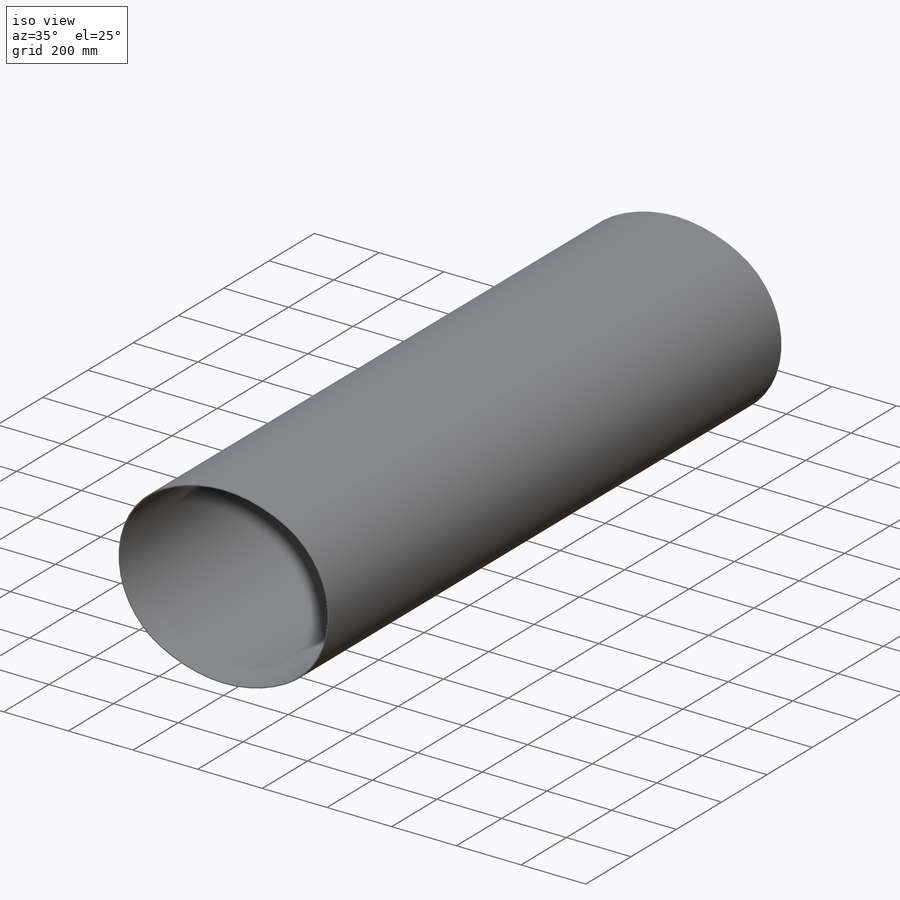
[diagram: iso view]
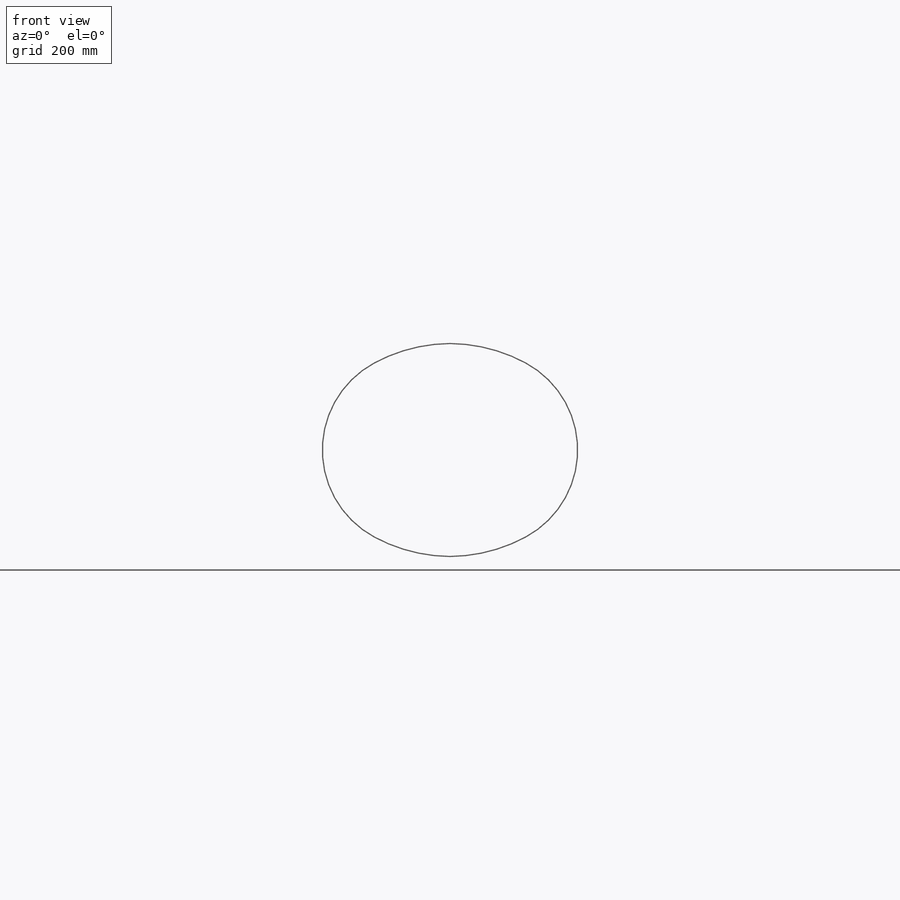
[diagram: front view]
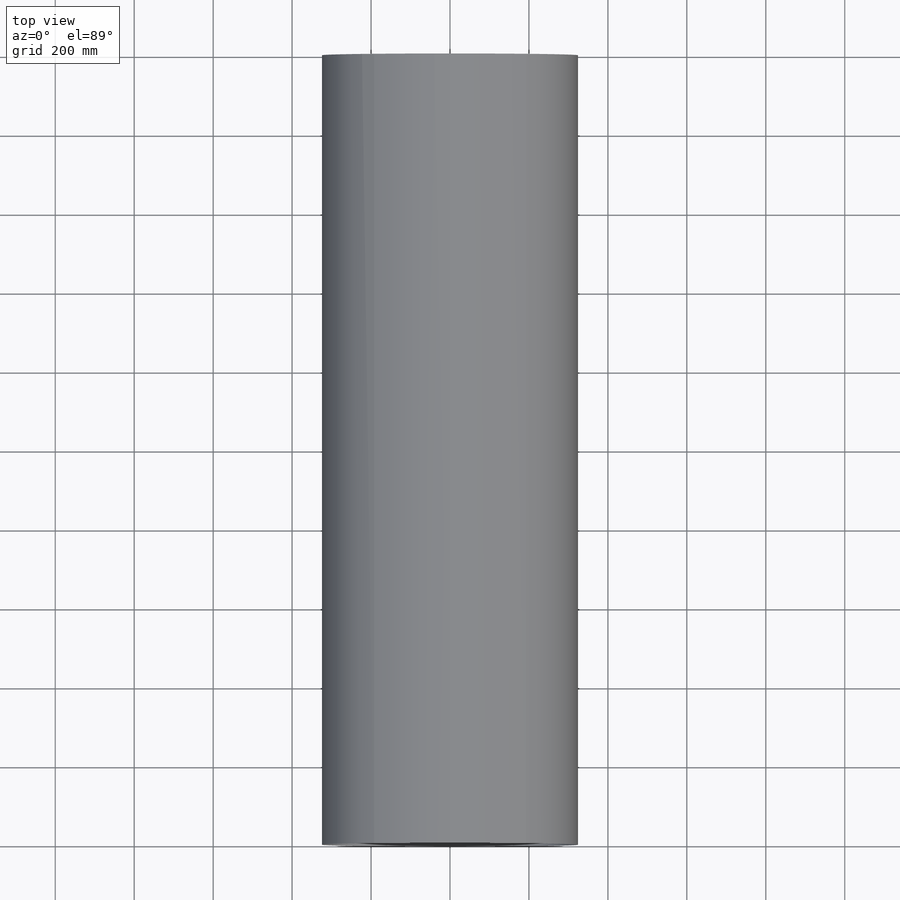
[diagram: top view]
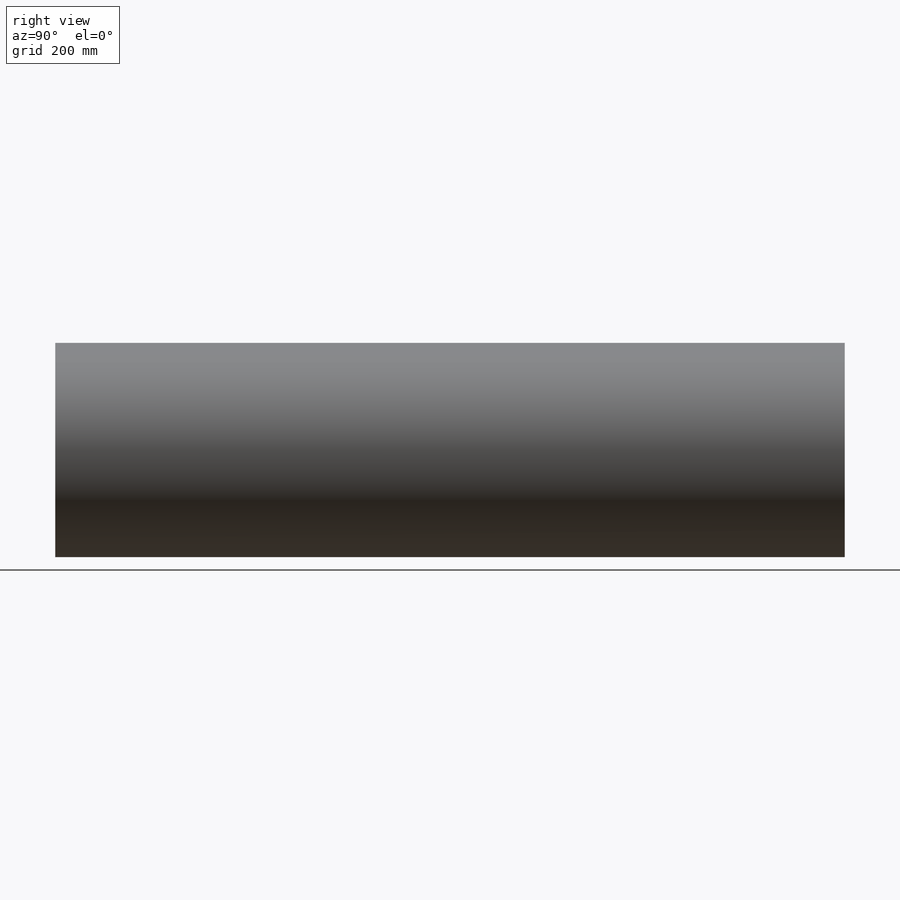
[diagram: right view]
SOLIDWORKS PART (.sldprt)
format: sldprt  version: not decoded by parser v0  size: 433,152 bytes
history: native  units: mm
features: sheet_metal_op x94, material x7, cut_extrude x2, plane x1, sketch x1 + 18 further entries (+16 scaffold rows collapsed; 2 parser-record rows omitted)
feature tree (141):
  scaffold x16  (default folders/planes/origin — collapsed)
  material  "1.4301"
  plane  "Vorderansicht"
  "Draufsicht"
  "Seitenansicht"
  "Y-Achse"
  "Z-Achse"
  sketch  "Skizze1"  dims[c1.D1=0.05mm c2.D1=3.0mm c2.D2=0.0 c2.D3=0.0mm c2.D6=500.0mm]
  sheet_metal_op  "Basis-Blech1"
  sheet_metal_op  "DPSAppName"
  sheet_metal_op  "DPSAppVersion"
  sheet_metal_op  "USERDEFALLOWANCE"  USERDEFALLOWANCEVALUE=0mm
  sheet_metal_op  "USERDEFRADIUS"  UDERDEFRADIUSVALUE=0mm
  sheet_metal_op  "GroupUpperTool"
  sheet_metal_op  "GroupDie"  RadiusShouldBeSource=3000mm RadiusShouldBeValue=3mm AllowanceShouldBeSource=3000mm AllowanceShouldBeType=0mm AllowanceShouldBeValue=500mm RadiusFromToPsMM=0mm
  sheet_metal_op  "UpperTool"
  sheet_metal_op  "LowerTool "
  sheet_metal_op  "DPSAttributeDefName"
  sheet_metal_op  "DPSAppName"
  sheet_metal_op  "DPSAppVersion"
  sheet_metal_op  "USERDEFALLOWANCE"  USERDEFALLOWANCEVALUE=0mm
  sheet_metal_op  "USERDEFRADIUS"  UDERDEFRADIUSVALUE=0mm
  sheet_metal_op  "GroupUpperTool"
  sheet_metal_op  "GroupDie"  RadiusShouldBeSource=0mm RadiusShouldBeValue=0mm AllowanceShouldBeSource=0mm AllowanceShouldBeType=0mm AllowanceShouldBeValue=0mm RadiusFromToPsMM=0mm
  sheet_metal_op  "UpperTool"
  sheet_metal_op  "LowerTool "
  material  "Basisbiegung2"  ToPsBend2=0
  sheet_metal_op  "DPSAttributeDefName"
  sheet_metal_op  "DPSAppName"
  sheet_metal_op  "DPSAppVersion"
  sheet_metal_op  "USERDEFALLOWANCE"  USERDEFALLOWANCEVALUE=0mm
  sheet_metal_op  "USERDEFRADIUS"  UDERDEFRADIUSVALUE=0mm
  sheet_metal_op  "GroupUpperTool"
  sheet_metal_op  "GroupDie"  RadiusShouldBeSource=3000mm RadiusShouldBeValue=410.462693mm AllowanceShouldBeSource=3000mm AllowanceShouldBeType=0mm AllowanceShouldBeValue=500mm RadiusFromToPsMM=15535.883768mm
  sheet_metal_op  "UpperTool"
  sheet_metal_op  "LowerTool "
  material  "Basisbiegung3"  ToPsBend3=0
  sheet_metal_op  "DPSAttributeDefName"
  sheet_metal_op  "DPSAppName"
  sheet_metal_op  "DPSAppVersion"
  sheet_metal_op  "USERDEFALLOWANCE"  USERDEFALLOWANCEVALUE=0mm
  sheet_metal_op  "USERDEFRADIUS"  UDERDEFRADIUSVALUE=0mm
  sheet_metal_op  "GroupUpperTool"
  sheet_metal_op  "GroupDie"  RadiusShouldBeSource=3000mm RadiusShouldBeValue=248.999284mm AllowanceShouldBeSource=3000mm AllowanceShouldBeType=0mm AllowanceShouldBeValue=500mm RadiusFromToPsMM=4338.96745mm
  sheet_metal_op  "UpperTool"
  sheet_metal_op  "LowerTool "
  material  "Basisbiegung4"  ToPsBend4=0
  sheet_metal_op  "DPSAttributeDefName"
  sheet_metal_op  "DPSAppName"
  sheet_metal_op  "DPSAppVersion"
  sheet_metal_op  "USERDEFALLOWANCE"  USERDEFALLOWANCEVALUE=0mm
  sheet_metal_op  "USERDEFRADIUS"  UDERDEFRADIUSVALUE=0mm
  sheet_metal_op  "GroupUpperTool"
  sheet_metal_op  "GroupDie"  RadiusShouldBeSource=3000mm RadiusShouldBeValue=410.458794mm AllowanceShouldBeSource=3000mm AllowanceShouldBeType=0mm AllowanceShouldBeValue=500mm RadiusFromToPsMM=15536.287241mm
  sheet_metal_op  "UpperTool"
  sheet_metal_op  "LowerTool "
  material  "Basisbiegung5"  ToPsBend5=0
  sheet_metal_op  "DPSAttributeDefName"
  sheet_metal_op  "DPSAppName"
  sheet_metal_op  "DPSAppVersion"
  sheet_metal_op  "USERDEFALLOWANCE"  USERDEFALLOWANCEVALUE=0mm
  sheet_metal_op  "USERDEFRADIUS"  UDERDEFRADIUSVALUE=0mm
  sheet_metal_op  "GroupUpperTool"
  sheet_metal_op  "GroupDie"  RadiusShouldBeSource=3000mm RadiusShouldBeValue=410.458794mm AllowanceShouldBeSource=3000mm AllowanceShouldBeType=0mm AllowanceShouldBeValue=500mm RadiusFromToPsMM=15536.287241mm
  sheet_metal_op  "UpperTool"
  sheet_metal_op  "LowerTool "
  material  "Basisbiegung6"  ToPsBend6=0
  sheet_metal_op  "DPSAttributeDefName"
  sheet_metal_op  "DPSAppName"
  sheet_metal_op  "DPSAppVersion"
  sheet_metal_op  "USERDEFALLOWANCE"  USERDEFALLOWANCEVALUE=0mm
  sheet_metal_op  "USERDEFRADIUS"  UDERDEFRADIUSVALUE=0mm
  sheet_metal_op  "GroupUpperTool"
  sheet_metal_op  "GroupDie"  RadiusShouldBeSource=3000mm RadiusShouldBeValue=248.999284mm AllowanceShouldBeSource=3000mm AllowanceShouldBeType=0mm AllowanceShouldBeValue=500mm RadiusFromToPsMM=4338.96745mm
  sheet_metal_op  "UpperTool"
  sheet_metal_op  "LowerTool "
  material  "Basisbiegung7"  ToPsBend7=0
  sheet_metal_op  "DPSAttributeDefName"
  sheet_metal_op  "DPSAppName"
  sheet_metal_op  "DPSAppVersion"
  sheet_metal_op  "USERDEFALLOWANCE"  USERDEFALLOWANCEVALUE=0mm
  sheet_metal_op  "USERDEFRADIUS"  UDERDEFRADIUSVALUE=0mm
  sheet_metal_op  "GroupUpperTool"
  sheet_metal_op  "GroupDie"  RadiusShouldBeSource=3000mm RadiusShouldBeValue=410.462693mm AllowanceShouldBeSource=3000mm AllowanceShouldBeType=0mm AllowanceShouldBeValue=500mm RadiusFromToPsMM=15535.883768mm
  sheet_metal_op  "UpperTool"
  sheet_metal_op  "LowerTool "
  cut_extrude  "Schnitt-Linear austragen2"  [1 undecoded]
  sheet_metal_op  "Blech(7)"  ToPs1=0
  sheet_metal_op  "DPSAttributeDefName"
  sheet_metal_op  "DPSAppName"
  sheet_metal_op  "DPSAppVersion"  BLECHDICKE=3mm
  sheet_metal_op  "MATERIAL"
  sheet_metal_op  "OGESENKBREITE"
  sheet_metal_op  "GESENKBREITE"
  sheet_metal_op  "VORZUGSGESENK"
  sheet_metal_op  "VERSION"
  sheet_metal_op  "FALZUNGEN"
  sheet_metal_op  "ProductionPlace"  FlatXmax=1878074.302797mm FlatYmax=2000000mm ToPs=0mm
  sheet_metal_op  "DPSAttributeDefName"
  sheet_metal_op  "DPSAppName"
  sheet_metal_op  "DPSAppVersion"  BLECHDICKE=0mm
  sheet_metal_op  "MATERIAL"
  sheet_metal_op  "OGESENKBREITE"
  sheet_metal_op  "GESENKBREITE"
  sheet_metal_op  "VORZUGSGESENK"
  sheet_metal_op  "VERSION"
  sheet_metal_op  "FALZUNGEN"
  sheet_metal_op  "ProductionPlace"  FlatXmax=0mm FlatYmax=0mm
  "Abwicklung(7)"
  "Abwickeln-<Basisbiegung2>1"
  "Abwickeln-<Basisbiegung3>1"
  "Abwickeln-<Basisbiegung4>1"
  "Abwickeln-<Basisbiegung5>1"
  "Abwickeln-<Basisbiegung6>1"
  "Abwickeln-<Basisbiegung7>1"
  parser-record x2  (decoder bookkeeping rows leaked as tree rows — omitted from the tree; the rows remain in map.json)
  cut_extrude  "Blech(8)"  Depth=3mm
  sheet_metal_op  "Abwicklung(7)"
  "Abwickeln-<Basisbiegung1>1"
  "Abwickeln-<Basisbiegung2>1"
  "Abwickeln-<Basisbiegung3>1"
  "Abwickeln-<Basisbiegung4>1"
  "Abwickeln-<Basisbiegung5>1"
  "Abwickeln-<Basisbiegung6>1"
  "Abwickeln-<Basisbiegung7>1"
decode coverage: 31 of 97 modeling features carry decoded parameters; 18 rows unclassified (native names shown)
note: 1 parameter value undecoded
note: suppression state not decoded; provenance and decode notes live in map.json
